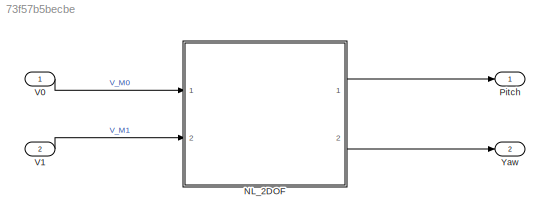
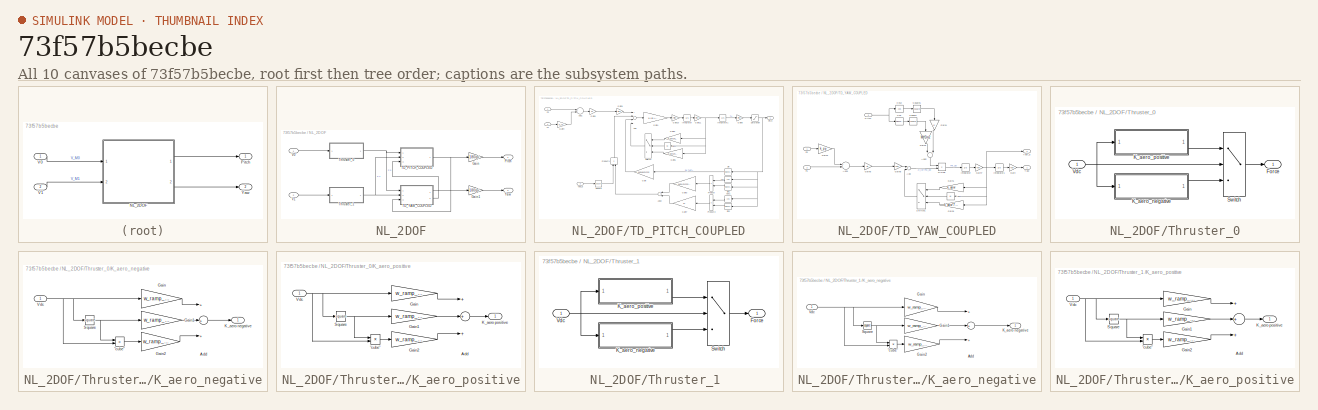
[diagram: thumbnail index - all 10 canvases of the model, root first then tree order]
MODEL slx_73f57b5becbe
KIND model
CONFIG AbsTol = auto
CONFIG EnableMultiTasking = off
CONFIG FixedStep = auto
CONFIG InitFcn = load("parameters.mat");\nload("Coefficients.mat");
CONFIG MaxStep = auto
CONFIG MinStep = auto
CONFIG RelTol = 1e-3
CONFIG SampleTimeConstraint = Unconstrained
CONFIG Solver = VariableStepAuto
CONFIG SolverName = VariableStepAuto
CONFIG StartTime = 0.0
CONFIG StopTime = 200
BLOCK [SubSystem] NL_2DOF
  Ports = [2, 2]
  RequestExecContextInheritance = off
BLOCK [Gain] NL_2DOF/Gain
  Gain = 180/pi
  OutDataTypeStr = Inherit: Inherit via internal rule
  ParamDataTypeStr = Inherit: Inherit via internal rule
  SaturateOnIntegerOverflow = off
BLOCK [Gain] NL_2DOF/Gain1
  Gain = 180/pi
  OutDataTypeStr = Inherit: Inherit via internal rule
  ParamDataTypeStr = Inherit: Inherit via internal rule
  SaturateOnIntegerOverflow = off
BLOCK [Outport] NL_2DOF/Pitch
  IconDisplay = Port number
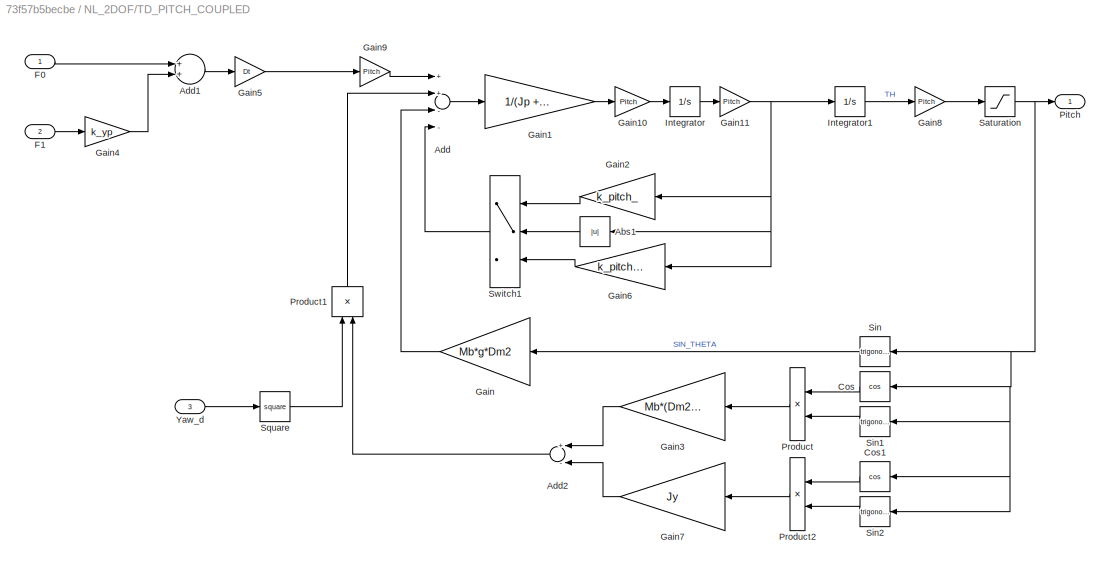
BLOCK [SubSystem] NL_2DOF/TD_PITCH_COUPLED
  Ports = [3, 1]
  RequestExecContextInheritance = off
BLOCK [Abs] NL_2DOF/TD_PITCH_COUPLED/Abs1
  SaturateOnIntegerOverflow = off
BLOCK [Sum] NL_2DOF/TD_PITCH_COUPLED/Add
  InputSameDT = off
  Inputs = ++--
  OutDataTypeStr = Inherit: Inherit via internal rule
  Ports = [4, 1]
  SaturateOnIntegerOverflow = off
BLOCK [Sum] NL_2DOF/TD_PITCH_COUPLED/Add1
  InputSameDT = off
  OutDataTypeStr = Inherit: Inherit via internal rule
  Ports = [2, 1]
  SaturateOnIntegerOverflow = off
BLOCK [Sum] NL_2DOF/TD_PITCH_COUPLED/Add2
  InputSameDT = off
  Inputs = +-
  OutDataTypeStr = Inherit: Inherit via internal rule
  Ports = [2, 1]
  SaturateOnIntegerOverflow = off
BLOCK [Trigonometry] NL_2DOF/TD_PITCH_COUPLED/Cos
  Operator = cos
  Ports = [1, 1]
BLOCK [Trigonometry] NL_2DOF/TD_PITCH_COUPLED/Cos1
  Operator = cos
  Ports = [1, 1]
BLOCK [Inport] NL_2DOF/TD_PITCH_COUPLED/F0
  IconDisplay = Port number
BLOCK [Inport] NL_2DOF/TD_PITCH_COUPLED/F1 
  IconDisplay = Port number
  Port = 2
BLOCK [Gain] NL_2DOF/TD_PITCH_COUPLED/Gain
  Gain = Mb*g*Dm2
  OutDataTypeStr = Inherit: Inherit via internal rule
  ParamDataTypeStr = Inherit: Inherit via internal rule
  SaturateOnIntegerOverflow = off
BLOCK [Gain] NL_2DOF/TD_PITCH_COUPLED/Gain1
  Gain = 1/(Jp + Mb*(Dm2)^2)
  OutDataTypeStr = Inherit: Inherit via internal rule
  ParamDataTypeStr = Inherit: Inherit via internal rule
  SaturateOnIntegerOverflow = off
BLOCK [Gain] NL_2DOF/TD_PITCH_COUPLED/Gain10
  Gain = Pitch
  OutDataTypeStr = Inherit: Inherit via internal rule
  ParamDataTypeStr = Inherit: Inherit via internal rule
  SaturateOnIntegerOverflow = off
BLOCK [Gain] NL_2DOF/TD_PITCH_COUPLED/Gain11
  Gain = Pitch
  OutDataTypeStr = Inherit: Inherit via internal rule
  ParamDataTypeStr = Inherit: Inherit via internal rule
  SaturateOnIntegerOverflow = off
BLOCK [Gain] NL_2DOF/TD_PITCH_COUPLED/Gain2
  Gain = k_pitch_
  OutDataTypeStr = Inherit: Inherit via internal rule
  ParamDataTypeStr = Inherit: Inherit via internal rule
  SaturateOnIntegerOverflow = off
BLOCK [Gain] NL_2DOF/TD_PITCH_COUPLED/Gain3
  Gain = Mb*(Dm2)^2
  OutDataTypeStr = Inherit: Inherit via internal rule
  ParamDataTypeStr = Inherit: Inherit via internal rule
  SaturateOnIntegerOverflow = off
BLOCK [Gain] NL_2DOF/TD_PITCH_COUPLED/Gain4
  Gain = k_yp
  OutDataTypeStr = Inherit: Inherit via internal rule
  ParamDataTypeStr = Inherit: Inherit via internal rule
  SaturateOnIntegerOverflow = off
BLOCK [Gain] NL_2DOF/TD_PITCH_COUPLED/Gain5
  Gain = Dt
  OutDataTypeStr = Inherit: Inherit via internal rule
  ParamDataTypeStr = Inherit: Inherit via internal rule
  SaturateOnIntegerOverflow = off
BLOCK [Gain] NL_2DOF/TD_PITCH_COUPLED/Gain6
  Gain = k_pitch_*5
  OutDataTypeStr = Inherit: Inherit via internal rule
  ParamDataTypeStr = Inherit: Inherit via internal rule
  SaturateOnIntegerOverflow = off
BLOCK [Gain] NL_2DOF/TD_PITCH_COUPLED/Gain7
  Gain = Jy
  OutDataTypeStr = Inherit: Inherit via internal rule
  ParamDataTypeStr = Inherit: Inherit via internal rule
  SaturateOnIntegerOverflow = off
BLOCK [Gain] NL_2DOF/TD_PITCH_COUPLED/Gain8
  Gain = Pitch
  OutDataTypeStr = Inherit: Inherit via internal rule
  ParamDataTypeStr = Inherit: Inherit via internal rule
  SaturateOnIntegerOverflow = off
BLOCK [Gain] NL_2DOF/TD_PITCH_COUPLED/Gain9
  Gain = Pitch
  OutDataTypeStr = Inherit: Inherit via internal rule
  ParamDataTypeStr = Inherit: Inherit via internal rule
  SaturateOnIntegerOverflow = off
BLOCK [Integrator] NL_2DOF/TD_PITCH_COUPLED/Integrator
  Ports = [1, 1]
BLOCK [Integrator] NL_2DOF/TD_PITCH_COUPLED/Integrator1
  Ports = [1, 1]
BLOCK [Outport] NL_2DOF/TD_PITCH_COUPLED/Pitch
  IconDisplay = Port number
BLOCK [Product] NL_2DOF/TD_PITCH_COUPLED/Product
  InputSameDT = off
  OutDataTypeStr = Inherit: Inherit via internal rule
  Ports = [2, 1]
  RndMeth = Floor
  SaturateOnIntegerOverflow = off
BLOCK [Product] NL_2DOF/TD_PITCH_COUPLED/Product1
  InputSameDT = off
  OutDataTypeStr = Inherit: Inherit via internal rule
  Ports = [2, 1]
  RndMeth = Floor
  SaturateOnIntegerOverflow = off
BLOCK [Product] NL_2DOF/TD_PITCH_COUPLED/Product2
  InputSameDT = off
  OutDataTypeStr = Inherit: Inherit via internal rule
  Ports = [2, 1]
  RndMeth = Floor
  SaturateOnIntegerOverflow = off
BLOCK [Saturate] NL_2DOF/TD_PITCH_COUPLED/Saturation
  InputPortMap = u0
  LinearizeAsGain = off
  LowerLimit = -p_sat_Hor_touch
  Ports = [1, 1]
  UpperLimit = p_sat_Vert_touch
BLOCK [Trigonometry] NL_2DOF/TD_PITCH_COUPLED/Sin
  Ports = [1, 1]
BLOCK [Trigonometry] NL_2DOF/TD_PITCH_COUPLED/Sin1
  Ports = [1, 1]
BLOCK [Trigonometry] NL_2DOF/TD_PITCH_COUPLED/Sin2
  Ports = [1, 1]
BLOCK [Math] NL_2DOF/TD_PITCH_COUPLED/Square
  Operator = square
  Ports = [1, 1]
  SignedPower = off
BLOCK [Switch] NL_2DOF/TD_PITCH_COUPLED/Switch1
  Criteria = u2 > Threshold
  InputSameDT = off
  RndMeth = Simplest
  SaturateOnIntegerOverflow = off
  Threshold = 0.15
BLOCK [Inport] NL_2DOF/TD_PITCH_COUPLED/Yaw_d
  IconDisplay = Port number
  Port = 3
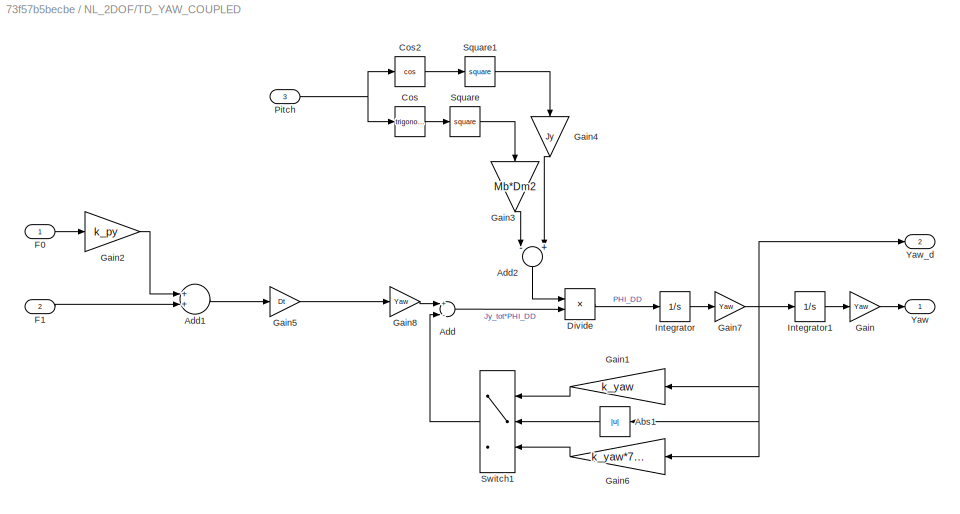
BLOCK [SubSystem] NL_2DOF/TD_YAW_COUPLED
  Ports = [3, 2]
  RequestExecContextInheritance = off
BLOCK [Abs] NL_2DOF/TD_YAW_COUPLED/Abs1
  SaturateOnIntegerOverflow = off
BLOCK [Sum] NL_2DOF/TD_YAW_COUPLED/Add
  InputSameDT = off
  Inputs = +-
  OutDataTypeStr = Inherit: Inherit via internal rule
  Ports = [2, 1]
  SaturateOnIntegerOverflow = off
BLOCK [Sum] NL_2DOF/TD_YAW_COUPLED/Add1
  InputSameDT = off
  OutDataTypeStr = Inherit: Inherit via internal rule
  Ports = [2, 1]
  SaturateOnIntegerOverflow = off
BLOCK [Sum] NL_2DOF/TD_YAW_COUPLED/Add2
  InputSameDT = off
  Inputs = -+
  OutDataTypeStr = Inherit: Inherit via internal rule
  Ports = [2, 1]
  SaturateOnIntegerOverflow = off
BLOCK [Trigonometry] NL_2DOF/TD_YAW_COUPLED/Cos
  Ports = [1, 1]
BLOCK [Trigonometry] NL_2DOF/TD_YAW_COUPLED/Cos2
  Operator = cos
  Ports = [1, 1]
BLOCK [Product] NL_2DOF/TD_YAW_COUPLED/Divide
  InputSameDT = off
  Inputs = /*
  OutDataTypeStr = Inherit: Inherit via internal rule
  Ports = [2, 1]
  RndMeth = Floor
  SaturateOnIntegerOverflow = off
BLOCK [Inport] NL_2DOF/TD_YAW_COUPLED/F0
  IconDisplay = Port number
BLOCK [Inport] NL_2DOF/TD_YAW_COUPLED/F1
  IconDisplay = Port number
  Port = 2
BLOCK [Gain] NL_2DOF/TD_YAW_COUPLED/Gain
  Gain = Yaw
  OutDataTypeStr = Inherit: Inherit via internal rule
  ParamDataTypeStr = Inherit: Inherit via internal rule
  SaturateOnIntegerOverflow = off
BLOCK [Gain] NL_2DOF/TD_YAW_COUPLED/Gain1
  Gain = k_yaw
  OutDataTypeStr = Inherit: Inherit via internal rule
  ParamDataTypeStr = Inherit: Inherit via internal rule
  SaturateOnIntegerOverflow = off
BLOCK [Gain] NL_2DOF/TD_YAW_COUPLED/Gain2
  Gain = k_py
  OutDataTypeStr = Inherit: Inherit via internal rule
  ParamDataTypeStr = Inherit: Inherit via internal rule
  SaturateOnIntegerOverflow = off
BLOCK [Gain] NL_2DOF/TD_YAW_COUPLED/Gain3
  Gain = Mb*Dm2
  OutDataTypeStr = Inherit: Inherit via internal rule
  ParamDataTypeStr = Inherit: Inherit via internal rule
  SaturateOnIntegerOverflow = off
BLOCK [Gain] NL_2DOF/TD_YAW_COUPLED/Gain4
  Gain = Jy
  OutDataTypeStr = Inherit: Inherit via internal rule
  ParamDataTypeStr = Inherit: Inherit via internal rule
  SaturateOnIntegerOverflow = off
BLOCK [Gain] NL_2DOF/TD_YAW_COUPLED/Gain5
  Gain = Dt
  OutDataTypeStr = Inherit: Inherit via internal rule
  ParamDataTypeStr = Inherit: Inherit via internal rule
  SaturateOnIntegerOverflow = off
BLOCK [Gain] NL_2DOF/TD_YAW_COUPLED/Gain6
  Gain = k_yaw*7.5
  OutDataTypeStr = Inherit: Inherit via internal rule
  ParamDataTypeStr = Inherit: Inherit via internal rule
  SaturateOnIntegerOverflow = off
BLOCK [Gain] NL_2DOF/TD_YAW_COUPLED/Gain7
  Gain = Yaw
  OutDataTypeStr = Inherit: Inherit via internal rule
  ParamDataTypeStr = Inherit: Inherit via internal rule
  SaturateOnIntegerOverflow = off
BLOCK [Gain] NL_2DOF/TD_YAW_COUPLED/Gain8
  Gain = Yaw
  OutDataTypeStr = Inherit: Inherit via internal rule
  ParamDataTypeStr = Inherit: Inherit via internal rule
  SaturateOnIntegerOverflow = off
BLOCK [Integrator] NL_2DOF/TD_YAW_COUPLED/Integrator
  Ports = [1, 1]
BLOCK [Integrator] NL_2DOF/TD_YAW_COUPLED/Integrator1
  Ports = [1, 1]
BLOCK [Inport] NL_2DOF/TD_YAW_COUPLED/Pitch
  IconDisplay = Port number
  Port = 3
BLOCK [Math] NL_2DOF/TD_YAW_COUPLED/Square
  Operator = square
  Ports = [1, 1]
  SignedPower = off
BLOCK [Math] NL_2DOF/TD_YAW_COUPLED/Square1
  Operator = square
  Ports = [1, 1]
  SignedPower = off
BLOCK [Switch] NL_2DOF/TD_YAW_COUPLED/Switch1
  Criteria = u2 > Threshold
  InputSameDT = off
  SaturateOnIntegerOverflow = off
  Threshold = 0.3
BLOCK [Outport] NL_2DOF/TD_YAW_COUPLED/Yaw
  IconDisplay = Port number
BLOCK [Outport] NL_2DOF/TD_YAW_COUPLED/Yaw_d
  IconDisplay = Port number
  Port = 2
BLOCK [SubSystem] NL_2DOF/Thruster_0
  Ports = [1, 1]
  RequestExecContextInheritance = off
BLOCK [Outport] NL_2DOF/Thruster_0/Force
  IconDisplay = Port number
BLOCK [SubSystem] NL_2DOF/Thruster_0/K_aero_negative
  Ports = [1, 1]
  RequestExecContextInheritance = off
BLOCK [Product] NL_2DOF/Thruster_0/K_aero_negative/"cube"
  InputSameDT = off
  Inputs = **
  OutDataTypeStr = Inherit: Inherit via internal rule
  Ports = [2, 1]
  RndMeth = Floor
  SaturateOnIntegerOverflow = off
BLOCK [Sum] NL_2DOF/Thruster_0/K_aero_negative/Add
  InputSameDT = off
  Inputs = +++
  OutDataTypeStr = Inherit: Inherit via internal rule
  Ports = [3, 1]
  SaturateOnIntegerOverflow = off
BLOCK [Gain] NL_2DOF/Thruster_0/K_aero_negative/Gain
  Gain = w_ramp_0N(3)
  OutDataTypeStr = Inherit: Inherit via internal rule
  ParamDataTypeStr = Inherit: Inherit via internal rule
  SaturateOnIntegerOverflow = off
BLOCK [Gain] NL_2DOF/Thruster_0/K_aero_negative/Gain1
  Gain = w_ramp_0N(2)
  OutDataTypeStr = Inherit: Inherit via internal rule
  ParamDataTypeStr = Inherit: Inherit via internal rule
  SaturateOnIntegerOverflow = off
BLOCK [Gain] NL_2DOF/Thruster_0/K_aero_negative/Gain2
  Gain = w_ramp_0N(1)
  OutDataTypeStr = Inherit: Inherit via internal rule
  ParamDataTypeStr = Inherit: Inherit via internal rule
  SaturateOnIntegerOverflow = off
BLOCK [Outport] NL_2DOF/Thruster_0/K_aero_negative/K_aero negative
  IconDisplay = Port number
BLOCK [Math] NL_2DOF/Thruster_0/K_aero_negative/Square
  Operator = square
  Ports = [1, 1]
  SignedPower = off
BLOCK [Inport] NL_2DOF/Thruster_0/K_aero_negative/Vdc
  IconDisplay = Port number
BLOCK [SubSystem] NL_2DOF/Thruster_0/K_aero_positive
  Ports = [1, 1]
  RequestExecContextInheritance = off
BLOCK [Product] NL_2DOF/Thruster_0/K_aero_positive/"cube"
  InputSameDT = off
  Inputs = **
  OutDataTypeStr = Inherit: Inherit via internal rule
  Ports = [2, 1]
  RndMeth = Floor
  SaturateOnIntegerOverflow = off
BLOCK [Sum] NL_2DOF/Thruster_0/K_aero_positive/Add
  InputSameDT = off
  Inputs = +++
  OutDataTypeStr = Inherit: Inherit via internal rule
  Ports = [3, 1]
  SaturateOnIntegerOverflow = off
BLOCK [Gain] NL_2DOF/Thruster_0/K_aero_positive/Gain
  Gain = w_ramp_0P(3)
  OutDataTypeStr = Inherit: Inherit via internal rule
  ParamDataTypeStr = Inherit: Inherit via internal rule
  SaturateOnIntegerOverflow = off
BLOCK [Gain] NL_2DOF/Thruster_0/K_aero_positive/Gain1
  Gain = w_ramp_0P(2)
  OutDataTypeStr = Inherit: Inherit via internal rule
  ParamDataTypeStr = Inherit: Inherit via internal rule
  SaturateOnIntegerOverflow = off
BLOCK [Gain] NL_2DOF/Thruster_0/K_aero_positive/Gain2
  Gain = w_ramp_0P(1)
  OutDataTypeStr = Inherit: Inherit via internal rule
  ParamDataTypeStr = Inherit: Inherit via internal rule
  SaturateOnIntegerOverflow = off
BLOCK [Outport] NL_2DOF/Thruster_0/K_aero_positive/K_aero positive
  IconDisplay = Port number
BLOCK [Math] NL_2DOF/Thruster_0/K_aero_positive/Square
  Operator = square
  Ports = [1, 1]
  SignedPower = off
BLOCK [Inport] NL_2DOF/Thruster_0/K_aero_positive/Vdc
  IconDisplay = Port number
BLOCK [Switch] NL_2DOF/Thruster_0/Switch
  Criteria = u2 > Threshold
  InputSameDT = off
  SaturateOnIntegerOverflow = off
BLOCK [Inport] NL_2DOF/Thruster_0/Vdc
  IconDisplay = Port number
BLOCK [SubSystem] NL_2DOF/Thruster_1 
  Ports = [1, 1]
  RequestExecContextInheritance = off
BLOCK [Outport] NL_2DOF/Thruster_1 /Force
  IconDisplay = Port number
BLOCK [SubSystem] NL_2DOF/Thruster_1 /K_aero_negative
  Ports = [1, 1]
  RequestExecContextInheritance = off
BLOCK [Product] NL_2DOF/Thruster_1 /K_aero_negative/"cube"
  InputSameDT = off
  Inputs = **
  OutDataTypeStr = Inherit: Inherit via internal rule
  Ports = [2, 1]
  RndMeth = Floor
  SaturateOnIntegerOverflow = off
BLOCK [Sum] NL_2DOF/Thruster_1 /K_aero_negative/Add
  InputSameDT = off
  Inputs = +++
  OutDataTypeStr = Inherit: Inherit via internal rule
  Ports = [3, 1]
  SaturateOnIntegerOverflow = off
BLOCK [Gain] NL_2DOF/Thruster_1 /K_aero_negative/Gain
  Gain = w_ramp_1N(3)
  OutDataTypeStr = Inherit: Inherit via internal rule
  ParamDataTypeStr = Inherit: Inherit via internal rule
  SaturateOnIntegerOverflow = off
BLOCK [Gain] NL_2DOF/Thruster_1 /K_aero_negative/Gain1
  Gain = w_ramp_1N(2)
  OutDataTypeStr = Inherit: Inherit via internal rule
  ParamDataTypeStr = Inherit: Inherit via internal rule
  SaturateOnIntegerOverflow = off
BLOCK [Gain] NL_2DOF/Thruster_1 /K_aero_negative/Gain2
  Gain = w_ramp_1N(1)
  OutDataTypeStr = Inherit: Inherit via internal rule
  ParamDataTypeStr = Inherit: Inherit via internal rule
  SaturateOnIntegerOverflow = off
BLOCK [Outport] NL_2DOF/Thruster_1 /K_aero_negative/K_aero negative
  IconDisplay = Port number
BLOCK [Math] NL_2DOF/Thruster_1 /K_aero_negative/Square
  Operator = square
  Ports = [1, 1]
  SignedPower = off
BLOCK [Inport] NL_2DOF/Thruster_1 /K_aero_negative/Vdc
  IconDisplay = Port number
BLOCK [SubSystem] NL_2DOF/Thruster_1 /K_aero_positive
  Ports = [1, 1]
  RequestExecContextInheritance = off
BLOCK [Product] NL_2DOF/Thruster_1 /K_aero_positive/"cube"
  InputSameDT = off
  Inputs = **
  OutDataTypeStr = Inherit: Inherit via internal rule
  Ports = [2, 1]
  RndMeth = Floor
  SaturateOnIntegerOverflow = off
BLOCK [Sum] NL_2DOF/Thruster_1 /K_aero_positive/Add
  InputSameDT = off
  Inputs = +++
  OutDataTypeStr = Inherit: Inherit via internal rule
  Ports = [3, 1]
  SaturateOnIntegerOverflow = off
BLOCK [Gain] NL_2DOF/Thruster_1 /K_aero_positive/Gain
  Gain = w_ramp_1P(3)
  OutDataTypeStr = Inherit: Inherit via internal rule
  ParamDataTypeStr = Inherit: Inherit via internal rule
  SaturateOnIntegerOverflow = off
BLOCK [Gain] NL_2DOF/Thruster_1 /K_aero_positive/Gain1
  Gain = w_ramp_1P(2)
  OutDataTypeStr = Inherit: Inherit via internal rule
  ParamDataTypeStr = Inherit: Inherit via internal rule
  SaturateOnIntegerOverflow = off
BLOCK [Gain] NL_2DOF/Thruster_1 /K_aero_positive/Gain2
  Gain = w_ramp_1P(1)
  OutDataTypeStr = Inherit: Inherit via internal rule
  ParamDataTypeStr = Inherit: Inherit via internal rule
  SaturateOnIntegerOverflow = off
BLOCK [Outport] NL_2DOF/Thruster_1 /K_aero_positive/K_aero positive
  IconDisplay = Port number
BLOCK [Math] NL_2DOF/Thruster_1 /K_aero_positive/Square
  Operator = square
  Ports = [1, 1]
  SignedPower = off
BLOCK [Inport] NL_2DOF/Thruster_1 /K_aero_positive/Vdc
  IconDisplay = Port number
BLOCK [Switch] NL_2DOF/Thruster_1 /Switch
  Criteria = u2 > Threshold
  InputSameDT = off
  SaturateOnIntegerOverflow = off
BLOCK [Inport] NL_2DOF/Thruster_1 /Vdc
  IconDisplay = Port number
BLOCK [Inport] NL_2DOF/V0
  IconDisplay = Port number
BLOCK [Inport] NL_2DOF/V1
  IconDisplay = Port number
  Port = 2
BLOCK [Outport] NL_2DOF/Yaw
  IconDisplay = Port number
  Port = 2
BLOCK [Outport] Pitch
  IconDisplay = Port number
BLOCK [Inport] V0
  IconDisplay = Port number
BLOCK [Inport] V1
  IconDisplay = Port number
  Port = 2
BLOCK [Outport] Yaw
  IconDisplay = Port number
  Port = 2
LINE NL_2DOF/Gain1:1 -> NL_2DOF/Yaw:1
LINE NL_2DOF/Gain:1 -> NL_2DOF/Pitch:1
LINE NL_2DOF/TD_PITCH_COUPLED/Abs1:1 -> NL_2DOF/TD_PITCH_COUPLED/Switch1:2
LINE NL_2DOF/TD_PITCH_COUPLED/Add1:1 -> NL_2DOF/TD_PITCH_COUPLED/Gain5:1
LINE NL_2DOF/TD_PITCH_COUPLED/Add2:1 -> NL_2DOF/TD_PITCH_COUPLED/Product1:2
LINE NL_2DOF/TD_PITCH_COUPLED/Add:1 -> NL_2DOF/TD_PITCH_COUPLED/Gain1:1
LINE NL_2DOF/TD_PITCH_COUPLED/Cos1:1 -> NL_2DOF/TD_PITCH_COUPLED/Product2:1
LINE NL_2DOF/TD_PITCH_COUPLED/Cos:1 -> NL_2DOF/TD_PITCH_COUPLED/Product:1
LINE NL_2DOF/TD_PITCH_COUPLED/F0:1 -> NL_2DOF/TD_PITCH_COUPLED/Add1:1
LINE NL_2DOF/TD_PITCH_COUPLED/F1 :1 -> NL_2DOF/TD_PITCH_COUPLED/Gain4:1
LINE NL_2DOF/TD_PITCH_COUPLED/Gain10:1 -> NL_2DOF/TD_PITCH_COUPLED/Integrator:1
NET NL_2DOF/TD_PITCH_COUPLED/Gain11:1 -> NL_2DOF/TD_PITCH_COUPLED/Abs1:1, NL_2DOF/TD_PITCH_COUPLED/Gain2:1, NL_2DOF/TD_PITCH_COUPLED/Gain6:1, NL_2DOF/TD_PITCH_COUPLED/Integrator1:1
LINE NL_2DOF/TD_PITCH_COUPLED/Gain1:1 -> NL_2DOF/TD_PITCH_COUPLED/Gain10:1
LINE NL_2DOF/TD_PITCH_COUPLED/Gain2:1 -> NL_2DOF/TD_PITCH_COUPLED/Switch1:1
LINE NL_2DOF/TD_PITCH_COUPLED/Gain3:1 -> NL_2DOF/TD_PITCH_COUPLED/Add2:1
LINE NL_2DOF/TD_PITCH_COUPLED/Gain4:1 -> NL_2DOF/TD_PITCH_COUPLED/Add1:2
LINE NL_2DOF/TD_PITCH_COUPLED/Gain5:1 -> NL_2DOF/TD_PITCH_COUPLED/Gain9:1
LINE NL_2DOF/TD_PITCH_COUPLED/Gain6:1 -> NL_2DOF/TD_PITCH_COUPLED/Switch1:3
LINE NL_2DOF/TD_PITCH_COUPLED/Gain7:1 -> NL_2DOF/TD_PITCH_COUPLED/Add2:2
LINE NL_2DOF/TD_PITCH_COUPLED/Gain8:1 -> NL_2DOF/TD_PITCH_COUPLED/Saturation:1
LINE NL_2DOF/TD_PITCH_COUPLED/Gain9:1 -> NL_2DOF/TD_PITCH_COUPLED/Add:1
LINE NL_2DOF/TD_PITCH_COUPLED/Gain:1 -> NL_2DOF/TD_PITCH_COUPLED/Add:3
LINE NL_2DOF/TD_PITCH_COUPLED/Integrator1:1 -> NL_2DOF/TD_PITCH_COUPLED/Gain8:1
LINE NL_2DOF/TD_PITCH_COUPLED/Integrator:1 -> NL_2DOF/TD_PITCH_COUPLED/Gain11:1
LINE NL_2DOF/TD_PITCH_COUPLED/Product1:1 -> NL_2DOF/TD_PITCH_COUPLED/Add:2
LINE NL_2DOF/TD_PITCH_COUPLED/Product2:1 -> NL_2DOF/TD_PITCH_COUPLED/Gain7:1
LINE NL_2DOF/TD_PITCH_COUPLED/Product:1 -> NL_2DOF/TD_PITCH_COUPLED/Gain3:1
NET NL_2DOF/TD_PITCH_COUPLED/Saturation:1 -> NL_2DOF/TD_PITCH_COUPLED/Cos1:1, NL_2DOF/TD_PITCH_COUPLED/Cos:1, NL_2DOF/TD_PITCH_COUPLED/Pitch:1, NL_2DOF/TD_PITCH_COUPLED/Sin1:1, NL_2DOF/TD_PITCH_COUPLED/Sin2:1, NL_2DOF/TD_PITCH_COUPLED/Sin:1
LINE NL_2DOF/TD_PITCH_COUPLED/Sin1:1 -> NL_2DOF/TD_PITCH_COUPLED/Product:2
LINE NL_2DOF/TD_PITCH_COUPLED/Sin2:1 -> NL_2DOF/TD_PITCH_COUPLED/Product2:2
LINE NL_2DOF/TD_PITCH_COUPLED/Sin:1 -> NL_2DOF/TD_PITCH_COUPLED/Gain:1
LINE NL_2DOF/TD_PITCH_COUPLED/Square:1 -> NL_2DOF/TD_PITCH_COUPLED/Product1:1
LINE NL_2DOF/TD_PITCH_COUPLED/Switch1:1 -> NL_2DOF/TD_PITCH_COUPLED/Add:4
LINE NL_2DOF/TD_PITCH_COUPLED/Yaw_d:1 -> NL_2DOF/TD_PITCH_COUPLED/Square:1
NET NL_2DOF/TD_PITCH_COUPLED:1 -> NL_2DOF/Gain:1, NL_2DOF/TD_YAW_COUPLED:3
LINE NL_2DOF/TD_YAW_COUPLED/Abs1:1 -> NL_2DOF/TD_YAW_COUPLED/Switch1:2
LINE NL_2DOF/TD_YAW_COUPLED/Add1:1 -> NL_2DOF/TD_YAW_COUPLED/Gain5:1
LINE NL_2DOF/TD_YAW_COUPLED/Add2:1 -> NL_2DOF/TD_YAW_COUPLED/Divide:1
LINE NL_2DOF/TD_YAW_COUPLED/Add:1 -> NL_2DOF/TD_YAW_COUPLED/Divide:2
LINE NL_2DOF/TD_YAW_COUPLED/Cos2:1 -> NL_2DOF/TD_YAW_COUPLED/Square1:1
LINE NL_2DOF/TD_YAW_COUPLED/Cos:1 -> NL_2DOF/TD_YAW_COUPLED/Square:1
LINE NL_2DOF/TD_YAW_COUPLED/Divide:1 -> NL_2DOF/TD_YAW_COUPLED/Integrator:1
LINE NL_2DOF/TD_YAW_COUPLED/F0:1 -> NL_2DOF/TD_YAW_COUPLED/Gain2:1
LINE NL_2DOF/TD_YAW_COUPLED/F1:1 -> NL_2DOF/TD_YAW_COUPLED/Add1:2
LINE NL_2DOF/TD_YAW_COUPLED/Gain1:1 -> NL_2DOF/TD_YAW_COUPLED/Switch1:1
LINE NL_2DOF/TD_YAW_COUPLED/Gain2:1 -> NL_2DOF/TD_YAW_COUPLED/Add1:1
LINE NL_2DOF/TD_YAW_COUPLED/Gain3:1 -> NL_2DOF/TD_YAW_COUPLED/Add2:1
LINE NL_2DOF/TD_YAW_COUPLED/Gain4:1 -> NL_2DOF/TD_YAW_COUPLED/Add2:2
LINE NL_2DOF/TD_YAW_COUPLED/Gain5:1 -> NL_2DOF/TD_YAW_COUPLED/Gain8:1
LINE NL_2DOF/TD_YAW_COUPLED/Gain6:1 -> NL_2DOF/TD_YAW_COUPLED/Switch1:3
NET NL_2DOF/TD_YAW_COUPLED/Gain7:1 -> NL_2DOF/TD_YAW_COUPLED/Abs1:1, NL_2DOF/TD_YAW_COUPLED/Gain1:1, NL_2DOF/TD_YAW_COUPLED/Gain6:1, NL_2DOF/TD_YAW_COUPLED/Integrator1:1, NL_2DOF/TD_YAW_COUPLED/Yaw_d:1
LINE NL_2DOF/TD_YAW_COUPLED/Gain8:1 -> NL_2DOF/TD_YAW_COUPLED/Add:1
LINE NL_2DOF/TD_YAW_COUPLED/Gain:1 -> NL_2DOF/TD_YAW_COUPLED/Yaw:1
LINE NL_2DOF/TD_YAW_COUPLED/Integrator1:1 -> NL_2DOF/TD_YAW_COUPLED/Gain:1
LINE NL_2DOF/TD_YAW_COUPLED/Integrator:1 -> NL_2DOF/TD_YAW_COUPLED/Gain7:1
NET NL_2DOF/TD_YAW_COUPLED/Pitch:1 -> NL_2DOF/TD_YAW_COUPLED/Cos2:1, NL_2DOF/TD_YAW_COUPLED/Cos:1
LINE NL_2DOF/TD_YAW_COUPLED/Square1:1 -> NL_2DOF/TD_YAW_COUPLED/Gain4:1
LINE NL_2DOF/TD_YAW_COUPLED/Square:1 -> NL_2DOF/TD_YAW_COUPLED/Gain3:1
LINE NL_2DOF/TD_YAW_COUPLED/Switch1:1 -> NL_2DOF/TD_YAW_COUPLED/Add:2
LINE NL_2DOF/TD_YAW_COUPLED:1 -> NL_2DOF/Gain1:1
LINE NL_2DOF/TD_YAW_COUPLED:2 -> NL_2DOF/TD_PITCH_COUPLED:3
LINE NL_2DOF/Thruster_0/K_aero_negative/"cube":1 -> NL_2DOF/Thruster_0/K_aero_negative/Gain2:1
LINE NL_2DOF/Thruster_0/K_aero_negative/Add:1 -> NL_2DOF/Thruster_0/K_aero_negative/K_aero negative:1
LINE NL_2DOF/Thruster_0/K_aero_negative/Gain1:1 -> NL_2DOF/Thruster_0/K_aero_negative/Add:2
LINE NL_2DOF/Thruster_0/K_aero_negative/Gain2:1 -> NL_2DOF/Thruster_0/K_aero_negative/Add:3
LINE NL_2DOF/Thruster_0/K_aero_negative/Gain:1 -> NL_2DOF/Thruster_0/K_aero_negative/Add:1
NET NL_2DOF/Thruster_0/K_aero_negative/Square:1 -> NL_2DOF/Thruster_0/K_aero_negative/"cube":1, NL_2DOF/Thruster_0/K_aero_negative/Gain1:1
NET NL_2DOF/Thruster_0/K_aero_negative/Vdc:1 -> NL_2DOF/Thruster_0/K_aero_negative/"cube":2, NL_2DOF/Thruster_0/K_aero_negative/Gain:1, NL_2DOF/Thruster_0/K_aero_negative/Square:1
LINE NL_2DOF/Thruster_0/K_aero_negative:1 -> NL_2DOF/Thruster_0/Switch:3
LINE NL_2DOF/Thruster_0/K_aero_positive/"cube":1 -> NL_2DOF/Thruster_0/K_aero_positive/Gain2:1
LINE NL_2DOF/Thruster_0/K_aero_positive/Add:1 -> NL_2DOF/Thruster_0/K_aero_positive/K_aero positive:1
LINE NL_2DOF/Thruster_0/K_aero_positive/Gain1:1 -> NL_2DOF/Thruster_0/K_aero_positive/Add:2
LINE NL_2DOF/Thruster_0/K_aero_positive/Gain2:1 -> NL_2DOF/Thruster_0/K_aero_positive/Add:3
LINE NL_2DOF/Thruster_0/K_aero_positive/Gain:1 -> NL_2DOF/Thruster_0/K_aero_positive/Add:1
NET NL_2DOF/Thruster_0/K_aero_positive/Square:1 -> NL_2DOF/Thruster_0/K_aero_positive/"cube":1, NL_2DOF/Thruster_0/K_aero_positive/Gain1:1
NET NL_2DOF/Thruster_0/K_aero_positive/Vdc:1 -> NL_2DOF/Thruster_0/K_aero_positive/"cube":2, NL_2DOF/Thruster_0/K_aero_positive/Gain:1, NL_2DOF/Thruster_0/K_aero_positive/Square:1
LINE NL_2DOF/Thruster_0/K_aero_positive:1 -> NL_2DOF/Thruster_0/Switch:1
LINE NL_2DOF/Thruster_0/Switch:1 -> NL_2DOF/Thruster_0/Force:1
NET NL_2DOF/Thruster_0/Vdc:1 -> NL_2DOF/Thruster_0/K_aero_negative:1, NL_2DOF/Thruster_0/K_aero_positive:1, NL_2DOF/Thruster_0/Switch:2
NET NL_2DOF/Thruster_0:1 -> NL_2DOF/TD_PITCH_COUPLED:1, NL_2DOF/TD_YAW_COUPLED:1
LINE NL_2DOF/Thruster_1 /K_aero_negative/"cube":1 -> NL_2DOF/Thruster_1 /K_aero_negative/Gain2:1
LINE NL_2DOF/Thruster_1 /K_aero_negative/Add:1 -> NL_2DOF/Thruster_1 /K_aero_negative/K_aero negative:1
LINE NL_2DOF/Thruster_1 /K_aero_negative/Gain1:1 -> NL_2DOF/Thruster_1 /K_aero_negative/Add:2
LINE NL_2DOF/Thruster_1 /K_aero_negative/Gain2:1 -> NL_2DOF/Thruster_1 /K_aero_negative/Add:3
LINE NL_2DOF/Thruster_1 /K_aero_negative/Gain:1 -> NL_2DOF/Thruster_1 /K_aero_negative/Add:1
NET NL_2DOF/Thruster_1 /K_aero_negative/Square:1 -> NL_2DOF/Thruster_1 /K_aero_negative/"cube":1, NL_2DOF/Thruster_1 /K_aero_negative/Gain1:1
NET NL_2DOF/Thruster_1 /K_aero_negative/Vdc:1 -> NL_2DOF/Thruster_1 /K_aero_negative/"cube":2, NL_2DOF/Thruster_1 /K_aero_negative/Gain:1, NL_2DOF/Thruster_1 /K_aero_negative/Square:1
LINE NL_2DOF/Thruster_1 /K_aero_negative:1 -> NL_2DOF/Thruster_1 /Switch:3
LINE NL_2DOF/Thruster_1 /K_aero_positive/"cube":1 -> NL_2DOF/Thruster_1 /K_aero_positive/Gain2:1
LINE NL_2DOF/Thruster_1 /K_aero_positive/Add:1 -> NL_2DOF/Thruster_1 /K_aero_positive/K_aero positive:1
LINE NL_2DOF/Thruster_1 /K_aero_positive/Gain1:1 -> NL_2DOF/Thruster_1 /K_aero_positive/Add:2
LINE NL_2DOF/Thruster_1 /K_aero_positive/Gain2:1 -> NL_2DOF/Thruster_1 /K_aero_positive/Add:3
LINE NL_2DOF/Thruster_1 /K_aero_positive/Gain:1 -> NL_2DOF/Thruster_1 /K_aero_positive/Add:1
NET NL_2DOF/Thruster_1 /K_aero_positive/Square:1 -> NL_2DOF/Thruster_1 /K_aero_positive/"cube":1, NL_2DOF/Thruster_1 /K_aero_positive/Gain1:1
NET NL_2DOF/Thruster_1 /K_aero_positive/Vdc:1 -> NL_2DOF/Thruster_1 /K_aero_positive/"cube":2, NL_2DOF/Thruster_1 /K_aero_positive/Gain:1, NL_2DOF/Thruster_1 /K_aero_positive/Square:1
LINE NL_2DOF/Thruster_1 /K_aero_positive:1 -> NL_2DOF/Thruster_1 /Switch:1
LINE NL_2DOF/Thruster_1 /Switch:1 -> NL_2DOF/Thruster_1 /Force:1
NET NL_2DOF/Thruster_1 /Vdc:1 -> NL_2DOF/Thruster_1 /K_aero_negative:1, NL_2DOF/Thruster_1 /K_aero_positive:1, NL_2DOF/Thruster_1 /Switch:2
NET NL_2DOF/Thruster_1 :1 -> NL_2DOF/TD_PITCH_COUPLED:2, NL_2DOF/TD_YAW_COUPLED:2
LINE NL_2DOF/V0:1 -> NL_2DOF/Thruster_0:1
LINE NL_2DOF/V1:1 -> NL_2DOF/Thruster_1 :1
LINE NL_2DOF:1 -> Pitch:1
LINE NL_2DOF:2 -> Yaw:1
LINE V0:1 -> NL_2DOF:1
LINE V1:1 -> NL_2DOF:2
note: NET lines group one-source signal fan-out (src -> all destinations, sorted); 1:1 wires keep LINE
